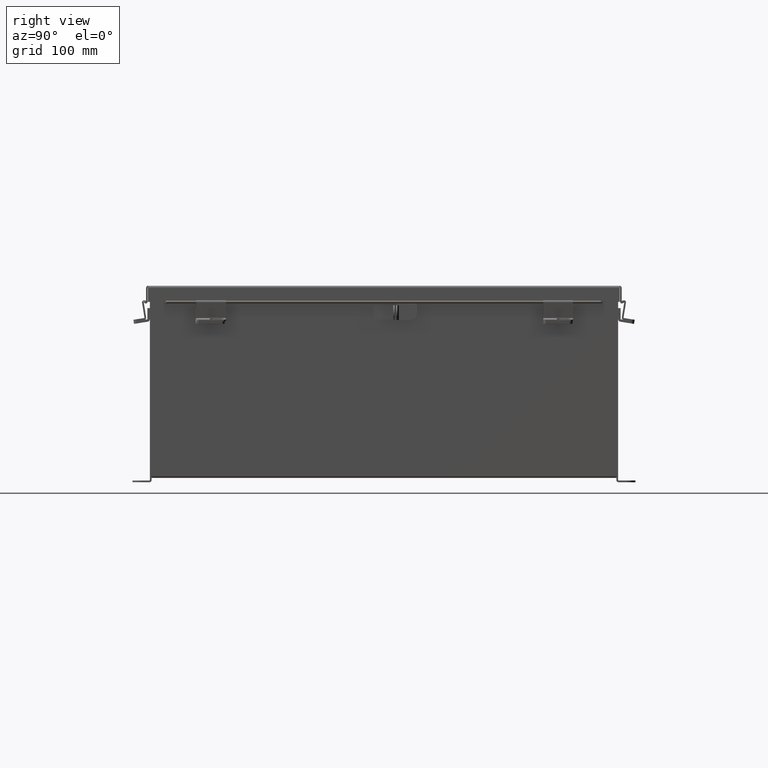
[diagram: clean part render]
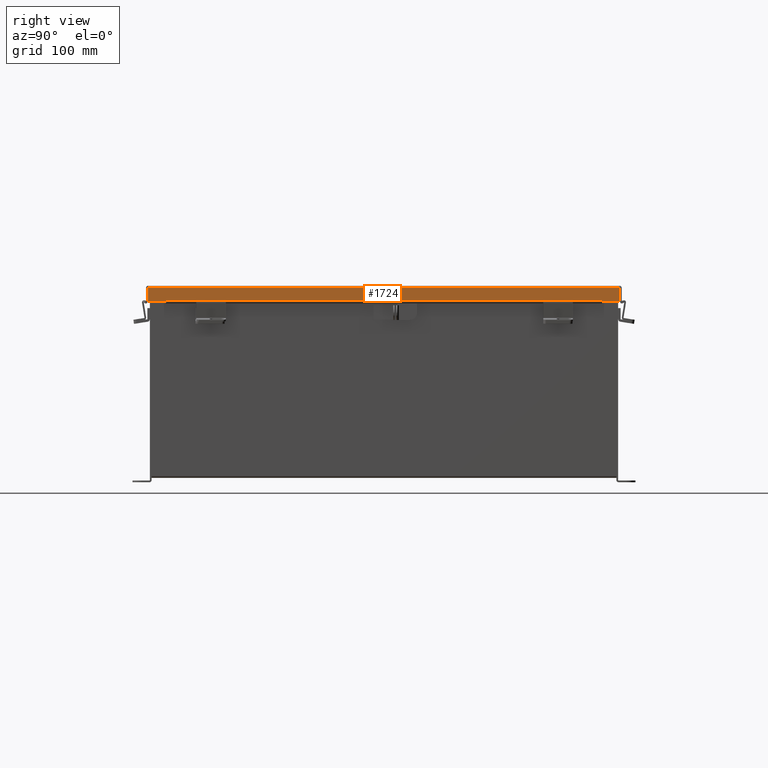
[diagram: same view with one face highlighted and labeled with its STEP entity id]
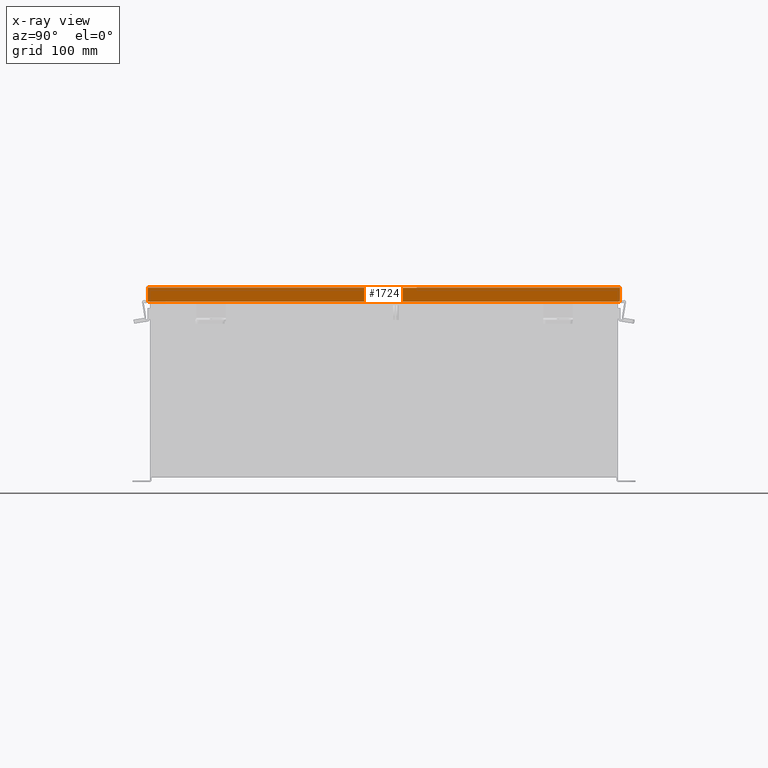
[diagram: x-ray of the same camera — body ghosted, the highlighted face saturated]
A machine part, right view. The second image highlights one B-rep face of the part: STEP entity #1724.
The next image is the same camera in x-ray: the body ghosted, the highlighted face saturated — about 0% of this face is hidden behind the body in this view.
In plain terms, the highlighted planar face has unit normal (-1, 0, -0).
Its self-contained STEP definition (entity closure, byte-faithful):
#169 = EDGE_CURVE ( 'NONE', #18906, #15811, #19068, .T. ) ;
#612 = CARTESIAN_POINT ( 'NONE',  ( -10.15625000000003000, 10.15624999999998400, 0.01300000000000010700 ) ) ;
#675 = VECTOR ( 'NONE', #10392, 39.37007874015748100 ) ;
#805 = EDGE_LOOP ( 'NONE', ( #4601, #4210, #20909, #16034, #1950, #20988, #9877, #22315 ) ) ;
#1283 = CARTESIAN_POINT ( 'NONE',  ( -10.15625000000003000, 10.07447893218811800, 0.0000000000000000000 ) ) ;
#1724 = ADVANCED_FACE ( 'NONE', ( #7869 ), #5008, .F. ) ;
#1950 = ORIENTED_EDGE ( 'NONE', *, *, #7101, .T. ) ;
#2025 = VECTOR ( 'NONE', #7596, 39.37007874015748100 ) ;
#2188 = CARTESIAN_POINT ( 'NONE',  ( -10.15625000000003000, -10.07447893218814800, -3.606039351636827200E-014 ) ) ;
#2233 = VECTOR ( 'NONE', #8001, 39.37007874015748100 ) ;
#2712 = DIRECTION ( 'NONE',  ( 1.000000000000000000, 3.392644796219358600E-030, 3.569293475308537100E-015 ) ) ;
#2781 = LINE ( 'NONE', #9672, #11337 ) ;
#4210 = ORIENTED_EDGE ( 'NONE', *, *, #7369, .T. ) ;
#4315 = CARTESIAN_POINT ( 'NONE',  ( -10.15625000000003400, -9.324478932188133800, 0.6123000000000005100 ) ) ;
#4601 = ORIENTED_EDGE ( 'NONE', *, *, #5114, .F. ) ;
#4778 = CARTESIAN_POINT ( 'NONE',  ( -10.15625000000003200, -4.268512490100411300E-018, 0.6123000000000005100 ) ) ;
#5008 = PLANE ( 'NONE',  #19619 ) ;
#5114 = EDGE_CURVE ( 'NONE', #20192, #5507, #6568, .T. ) ;
#5377 = DIRECTION ( 'NONE',  ( -3.166671605124525800E-030, -1.000000000000000000, -1.853823127269377700E-029 ) ) ;
#5507 = VERTEX_POINT ( 'NONE', #17083 ) ;
#6018 = CARTESIAN_POINT ( 'NONE',  ( -10.15625000000003000, 10.07447893218811800, 0.01300000000000010700 ) ) ;
#6568 = LINE ( 'NONE', #14711, #2025 ) ;
#7101 = EDGE_CURVE ( 'NONE', #20289, #18906, #21467, .T. ) ;
#7364 = EDGE_CURVE ( 'NONE', #15550, #15811, #2781, .T. ) ;
#7369 = EDGE_CURVE ( 'NONE', #20192, #11299, #21188, .T. ) ;
#7596 = DIRECTION ( 'NONE',  ( 1.401985044024228000E-013, 7.009925220121121200E-014, -1.000000000000000000 ) ) ;
#7838 = CARTESIAN_POINT ( 'NONE',  ( -10.15625000000003400, -10.07447893218814800, 0.6123000000000005100 ) ) ;
#7869 = FACE_OUTER_BOUND ( 'NONE', #805, .T. ) ;
#8001 = DIRECTION ( 'NONE',  ( 3.166671605124525800E-030, 1.000000000000000000, 1.853823127269377700E-029 ) ) ;
#8949 = CARTESIAN_POINT ( 'NONE',  ( -10.15625000000003400, -9.324478932188130300, 0.5967115427318793200 ) ) ;
#9672 = CARTESIAN_POINT ( 'NONE',  ( -10.15625000000003000, -9.324478932188130300, 0.5967115427318793200 ) ) ;
#9877 = ORIENTED_EDGE ( 'NONE', *, *, #7364, .F. ) ;
#10183 = CARTESIAN_POINT ( 'NONE',  ( -10.15625000000003200, 0.0000000000000000000, -3.606039351636827200E-014 ) ) ;
#10392 = DIRECTION ( 'NONE',  ( 3.166671605124525800E-030, 1.000000000000000000, 1.853823127269377700E-029 ) ) ;
#10407 = DIRECTION ( 'NONE',  ( 3.569293475308537100E-015, -1.846427556282924000E-029, -1.000000000000000000 ) ) ;
#10629 = VERTEX_POINT ( 'NONE', #6018 ) ;
#11299 = VERTEX_POINT ( 'NONE', #16407 ) ;
#11337 = VECTOR ( 'NONE', #13226, 39.37007874015748100 ) ;
#12475 = DIRECTION ( 'NONE',  ( -3.569293475308537100E-015, 1.846427556282924300E-029, 1.000000000000000000 ) ) ;
#12866 = EDGE_CURVE ( 'NONE', #10629, #11299, #19649, .T. ) ;
#13226 = DIRECTION ( 'NONE',  ( -1.401985044024173000E-013, -7.009925220120844800E-014, 1.000000000000000000 ) ) ;
#14315 = VECTOR ( 'NONE', #19772, 39.37007874015748100 ) ;
#14711 = CARTESIAN_POINT ( 'NONE',  ( -10.15625000000003400, 9.324478932188135600, 0.6122999999999994000 ) ) ;
#14976 = VECTOR ( 'NONE', #21993, 39.37007874015748100 ) ;
#15536 = CARTESIAN_POINT ( 'NONE',  ( -10.15625000000003000, -10.07447893218814800, 0.01300000000000010700 ) ) ;
#15550 = VERTEX_POINT ( 'NONE', #8949 ) ;
#15811 = VERTEX_POINT ( 'NONE', #4315 ) ;
#16034 = ORIENTED_EDGE ( 'NONE', *, *, #19777, .F. ) ;
#16042 = VECTOR ( 'NONE', #5377, 39.37007874015748100 ) ;
#16407 = CARTESIAN_POINT ( 'NONE',  ( -10.15625000000003400, 10.07447893218811800, 0.6122999999999994000 ) ) ;
#17083 = CARTESIAN_POINT ( 'NONE',  ( -10.15625000000003000, 9.324478932188135600, 0.5967115427318793200 ) ) ;
#17132 = CARTESIAN_POINT ( 'NONE',  ( -10.15625000000003400, 9.324478932188135600, 0.6122999999999994000 ) ) ;
#17517 = CARTESIAN_POINT ( 'NONE',  ( -10.15625000000003000, 9.324478932188135600, 0.5967115427318793200 ) ) ;
#17671 = LINE ( 'NONE', #17517, #16042 ) ;
#17839 = EDGE_CURVE ( 'NONE', #5507, #15550, #17671, .T. ) ;
#18906 = VERTEX_POINT ( 'NONE', #7838 ) ;
#18970 = LINE ( 'NONE', #612, #14315 ) ;
#19068 = LINE ( 'NONE', #4778, #675 ) ;
#19619 = AXIS2_PLACEMENT_3D ( 'NONE', #10183, #2712, #10407 ) ;
#19649 = LINE ( 'NONE', #1283, #14976 ) ;
#19772 = DIRECTION ( 'NONE',  ( 3.166671605124525800E-030, 1.000000000000000000, 1.853823127269377700E-029 ) ) ;
#19777 = EDGE_CURVE ( 'NONE', #20289, #10629, #18970, .T. ) ;
#20192 = VERTEX_POINT ( 'NONE', #17132 ) ;
#20214 = CARTESIAN_POINT ( 'NONE',  ( -10.15625000000003200, -4.268512490100411300E-018, 0.6123000000000005100 ) ) ;
#20289 = VERTEX_POINT ( 'NONE', #15536 ) ;
#20401 = VECTOR ( 'NONE', #12475, 39.37007874015748100 ) ;
#20909 = ORIENTED_EDGE ( 'NONE', *, *, #12866, .F. ) ;
#20988 = ORIENTED_EDGE ( 'NONE', *, *, #169, .T. ) ;
#21188 = LINE ( 'NONE', #20214, #2233 ) ;
#21467 = LINE ( 'NONE', #2188, #20401 ) ;
#21993 = DIRECTION ( 'NONE',  ( -3.569293475308537100E-015, 1.846427556282924300E-029, 1.000000000000000000 ) ) ;
#22315 = ORIENTED_EDGE ( 'NONE', *, *, #17839, .F. ) ;